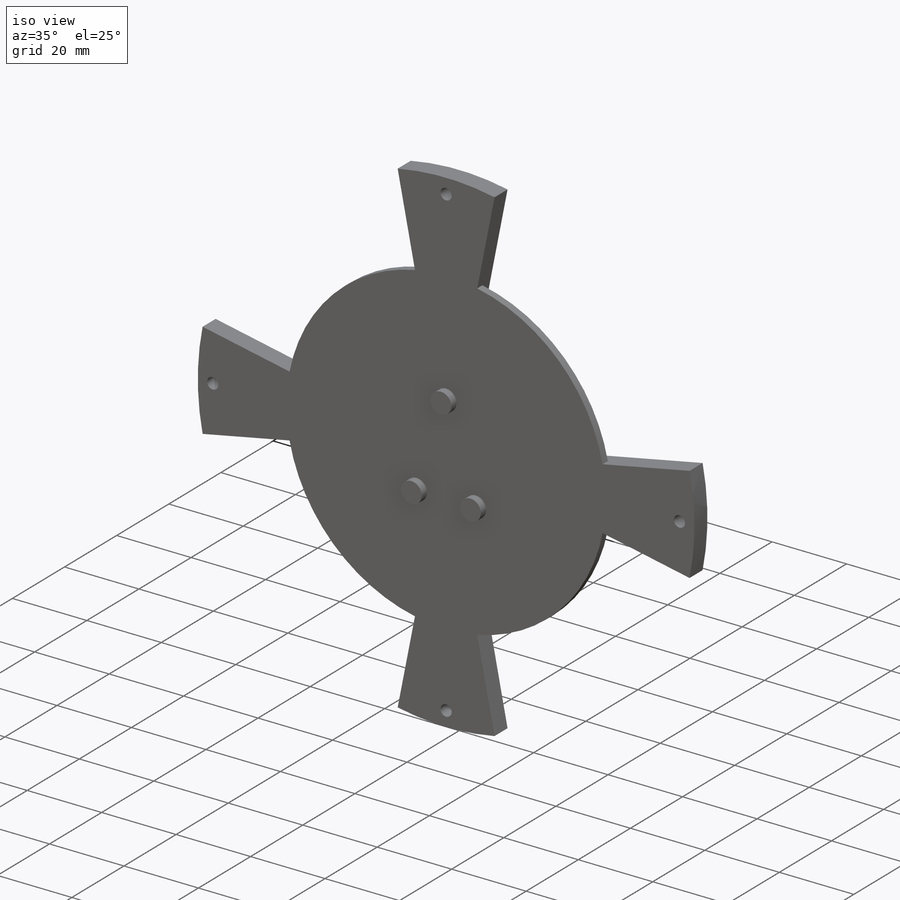
[diagram: iso view]
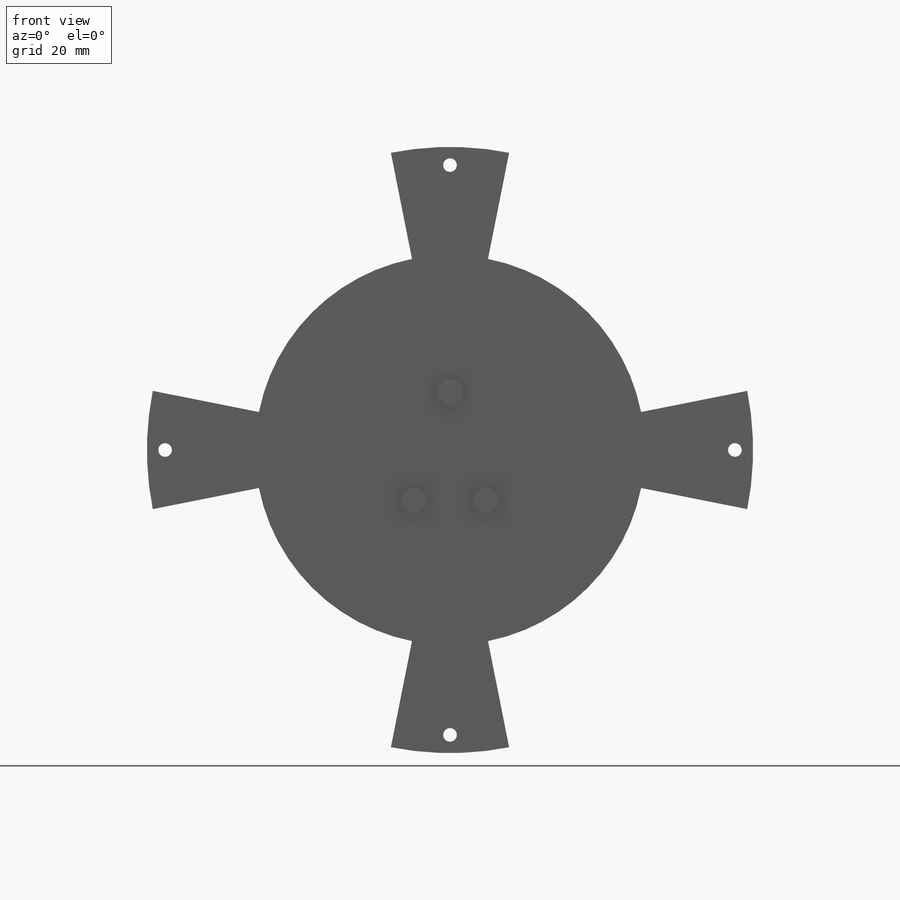
[diagram: front view]
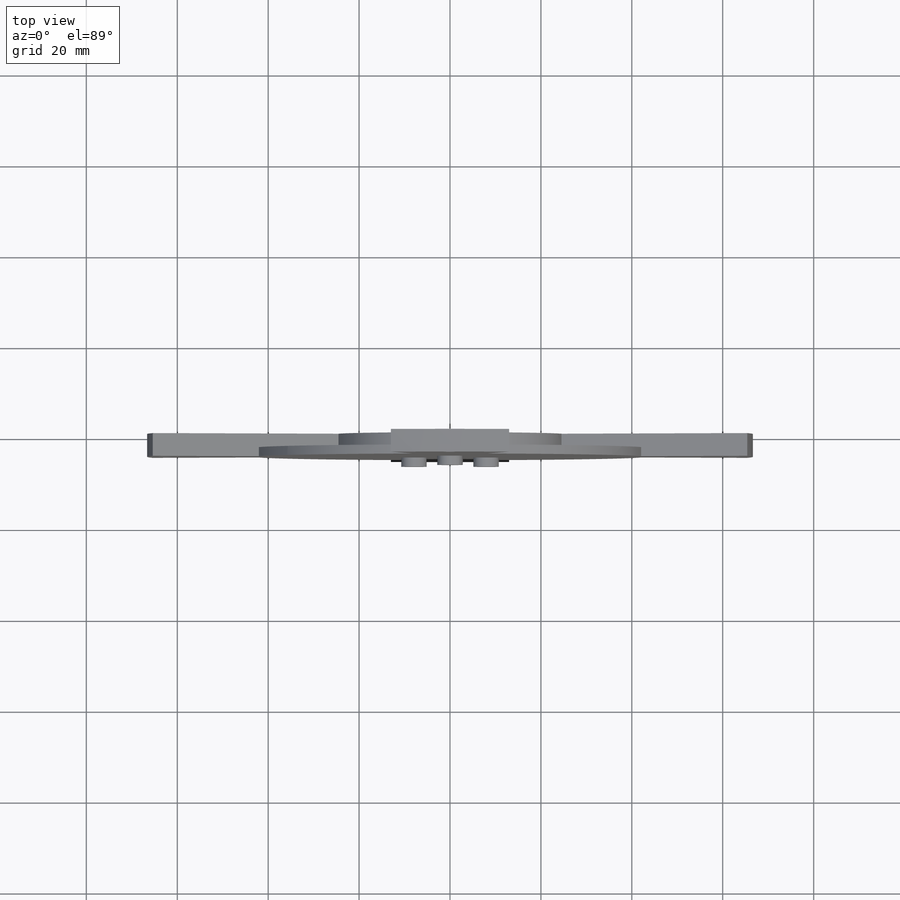
[diagram: top view]
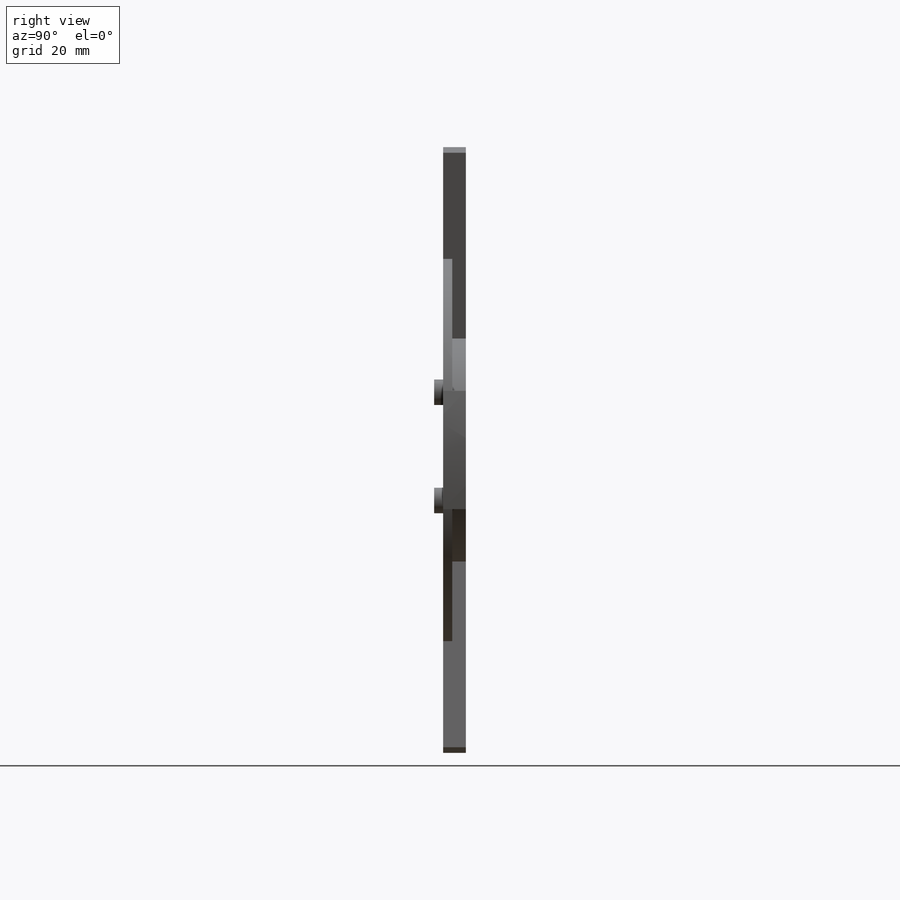
[diagram: right view]
SOLIDWORKS PART (.sldprt)
format: sldprt  version: not decoded by parser v0  size: 225,792 bytes
history: native  units: mm
features: sketch x4, extrude x4, material x1 (+15 scaffold rows collapsed)
feature tree (24):
  scaffold x15  (default folders/planes/origin — collapsed)
  material  "Material <not specified>"
  sketch  "Sketch1"  dims[D1=24.0mm]
  extrude  "Extrude1"  Depth=5mm
  sketch  "Sketch4"  dims[D1=2.4125mm]
  extrude  "Extrude2"  Depth=5mm
  sketch  "Sketch6"  dims[D1=3.175mm]
  extrude  "Extrude4"  Depth=2mm
  sketch  "Sketch7"
  extrude  "Extrude5"  Depth=2mm
decode coverage: 7 of 8 modeling features carry decoded parameters
note: suppression state not decoded; provenance and decode notes live in map.json
